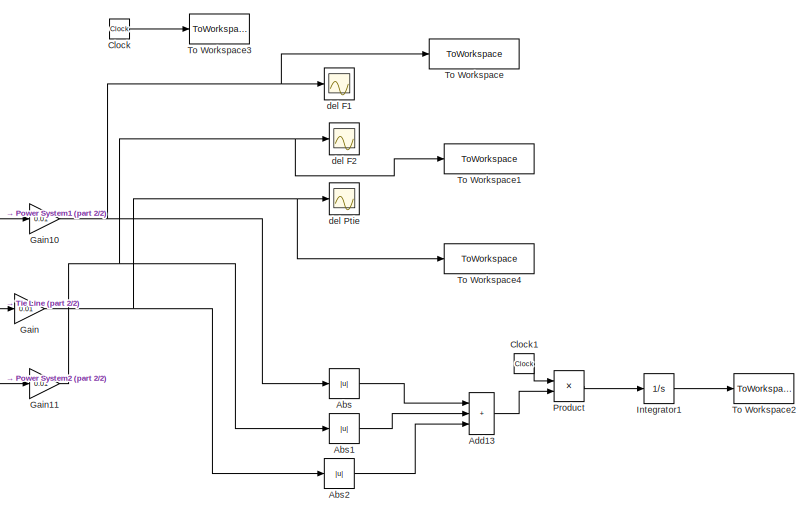
[diagram: root canvas - part 1/2, middle right region]
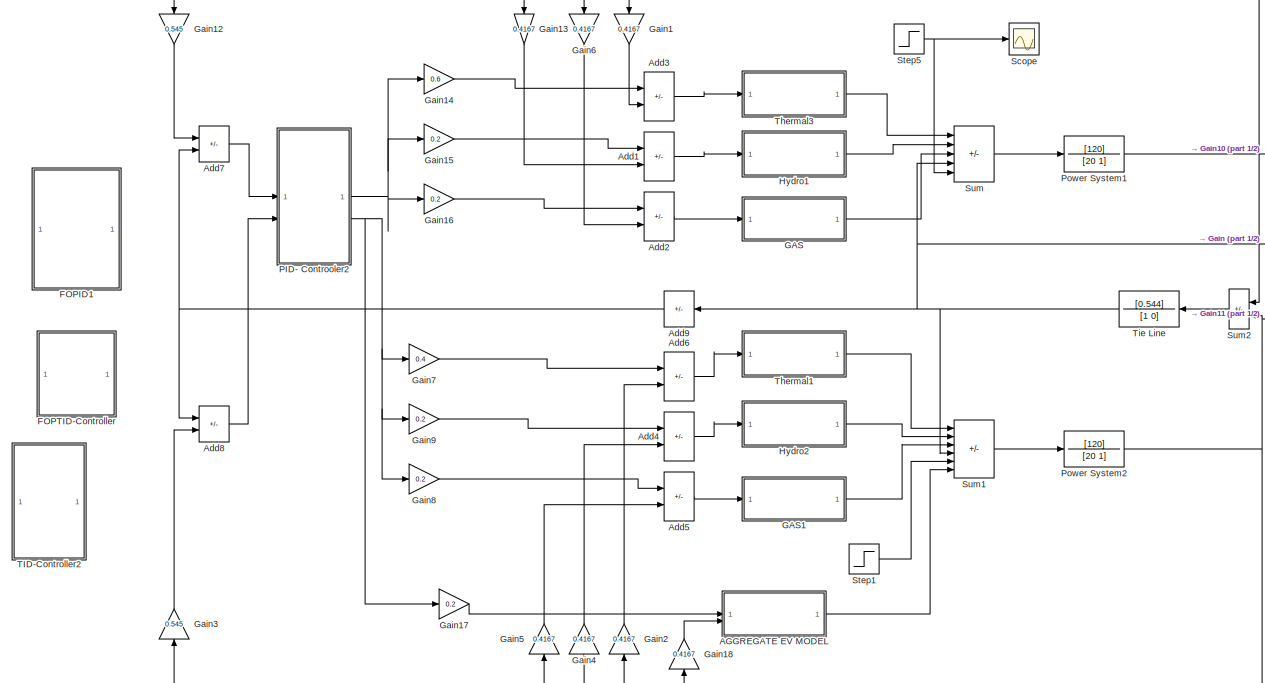
[diagram: root canvas - part 2/2, left side, full height]
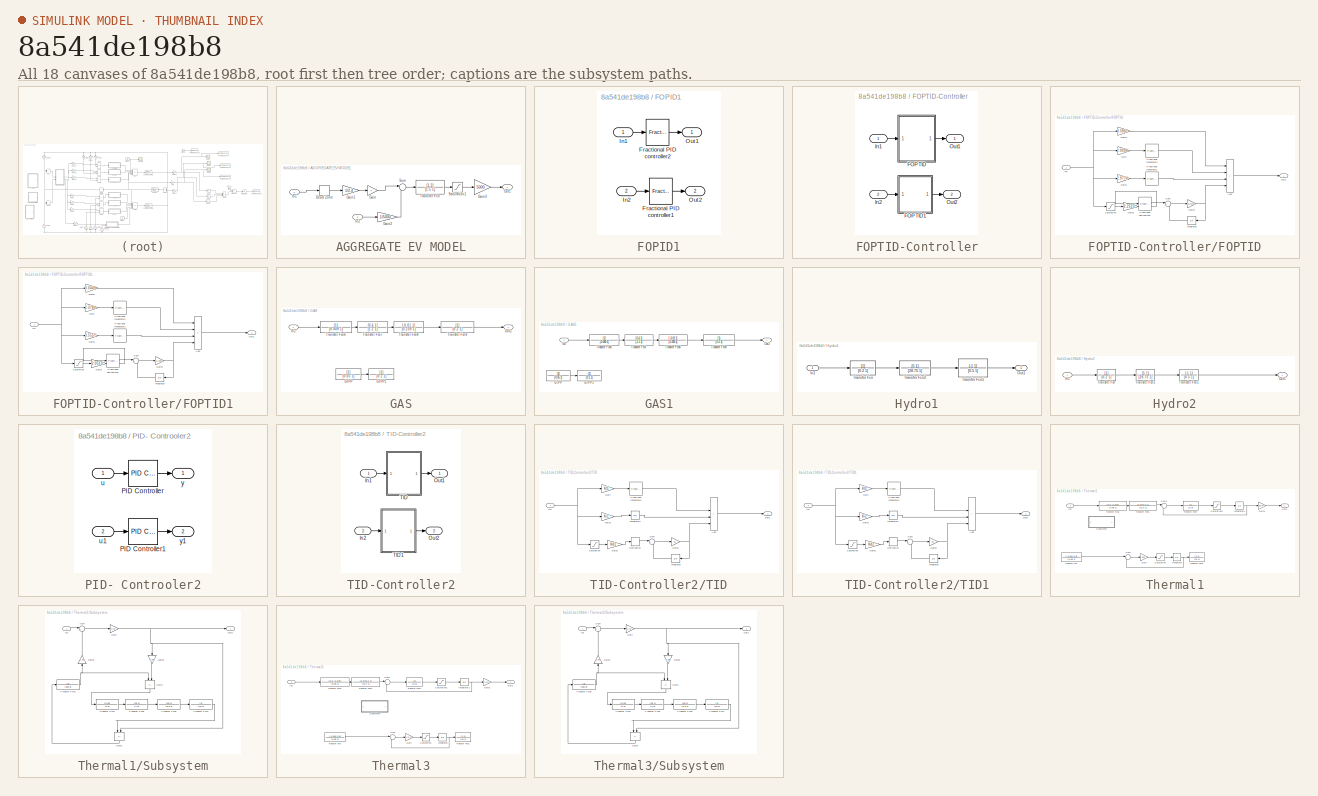
[diagram: thumbnail index - all 18 canvases of the model, root first then tree order]
MODEL slx_8a541de198b8
KIND model
CONFIG AbsTol = auto
CONFIG EnableMultiTasking = off
CONFIG FixedStep = auto
CONFIG MaxStep = auto
CONFIG MinStep = auto
CONFIG RelTol = 1e-3
CONFIG SampleTimeConstraint = Unconstrained
CONFIG SolverName = VariableStepAuto
CONFIG StartTime = 0.0
CONFIG StopTime = 50
BLOCK [SubSystem] AGGREGATE EV MODEL
BLOCK [DeadZone] AGGREGATE EV MODEL/Dead Zone
  LowerValue = -0.01
  UpperValue = 0.01
BLOCK [Gain] AGGREGATE EV MODEL/Gain
BLOCK [Gain] AGGREGATE EV MODEL/Gain1
  Gain = 1/2.4
BLOCK [Gain] AGGREGATE EV MODEL/Gain2
  Gain = 1/5000
BLOCK [Gain] AGGREGATE EV MODEL/Gain3
  Gain = 5000
BLOCK [Inport] AGGREGATE EV MODEL/In1
BLOCK [Inport] AGGREGATE EV MODEL/In2
  Port = 2
BLOCK [Outport] AGGREGATE EV MODEL/Out1
BLOCK [Saturate] AGGREGATE EV MODEL/Saturation1
  LowerLimit = -0.01
  UpperLimit = 0.01
BLOCK [Sum] AGGREGATE EV MODEL/Sum
  Inputs = |-+
BLOCK [TransferFcn] AGGREGATE EV MODEL/Transfer Fcn
  Denominator = [1.5 1]
  Numerator = [1.2]
BLOCK [Abs] Abs
  SaturateOnIntegerOverflow = off
BLOCK [Abs] Abs1
  SaturateOnIntegerOverflow = off
BLOCK [Abs] Abs2
  SaturateOnIntegerOverflow = off
BLOCK [Sum] Add1
  IconShape = rectangular
  Inputs = +-
BLOCK [Sum] Add13
  IconShape = rectangular
  Inputs = +++
BLOCK [Sum] Add2
  IconShape = rectangular
  Inputs = +-
BLOCK [Sum] Add3
  IconShape = rectangular
  Inputs = +-
BLOCK [Sum] Add4
  IconShape = rectangular
  Inputs = +-
BLOCK [Sum] Add5
  IconShape = rectangular
  Inputs = +-
BLOCK [Sum] Add6
  IconShape = rectangular
  Inputs = +-
BLOCK [Sum] Add7
  IconShape = rectangular
  Inputs = --
BLOCK [Sum] Add8
  IconShape = rectangular
  Inputs = +-
BLOCK [Sum] Add9
  IconShape = rectangular
  Inputs = -++
  NameLocation = top
BLOCK [Clock] Clock
BLOCK [Clock] Clock1
BLOCK [SubSystem] FOPID1
  Commented = on
BLOCK [Reference] FOPID1/Fractional PID controller1  REF=fod/Fractional PID  (lib defined in slx_5cb2d42c7bef)
controller
  SourceBlock = fod/Fractional PID\ncontroller
  SourceProductName = FOMCON Toolbox
  SourceType = Fractional PID
BLOCK [Reference] FOPID1/Fractional PID controller2  REF=fod/Fractional PID  (lib defined in slx_5cb2d42c7bef)
controller
  SourceBlock = fod/Fractional PID\ncontroller
  SourceProductName = FOMCON Toolbox
  SourceType = Fractional PID
BLOCK [Inport] FOPID1/In1
BLOCK [Inport] FOPID1/In2
  Port = 2
BLOCK [Outport] FOPID1/Out1
BLOCK [Outport] FOPID1/Out2
  Port = 2
BLOCK [SubSystem] FOPTID-Controller
  Commented = on
BLOCK [SubSystem] FOPTID-Controller/FOPTID
BLOCK [Sum] FOPTID-Controller/FOPTID/Add
  IconShape = rectangular
  Inputs = ++++
BLOCK [Reference] FOPTID-Controller/FOPTID/Fractional derivative2  REF=fod/Fractional  (lib defined in slx_5cb2d42c7bef)
derivative
  SourceBlock = fod/Fractional\nderivative
  SourceProductName = FOMCON Toolbox
  SourceType = Fractional derivative
BLOCK [Reference] FOPTID-Controller/FOPTID/Fractional integrator1  REF=fod/Fractional  (lib defined in slx_5cb2d42c7bef)
integrator
  SourceBlock = fod/Fractional\nintegrator
  SourceProductName = FOMCON Toolbox
  SourceType = Fractional integrator
BLOCK [Reference] FOPTID-Controller/FOPTID/Fractional integrator3  REF=fod/Fractional  (lib defined in slx_5cb2d42c7bef)
integrator
  SourceBlock = fod/Fractional\nintegrator
  SourceProductName = FOMCON Toolbox
  SourceType = Fractional integrator
BLOCK [Gain] FOPTID-Controller/FOPTID/Gain
  Gain = 2.9098
BLOCK [Gain] FOPTID-Controller/FOPTID/Gain1
  Gain = 2.9774
BLOCK [Gain] FOPTID-Controller/FOPTID/Gain2
  Gain = 2.2513
BLOCK [Gain] FOPTID-Controller/FOPTID/Gain3
  Gain = 43.5523
BLOCK [Gain] FOPTID-Controller/FOPTID/Gain4
  Gain = 4.5882
BLOCK [Inport] FOPTID-Controller/FOPTID/In1
BLOCK [Integrator] FOPTID-Controller/FOPTID/Integrator
  NameLocation = top
BLOCK [Outport] FOPTID-Controller/FOPTID/Out1
BLOCK [Saturate] FOPTID-Controller/FOPTID/Saturation
  LowerLimit = -100000
  UpperLimit = 100000
BLOCK [Sum] FOPTID-Controller/FOPTID/Sum
  Inputs = |+-
BLOCK [SubSystem] FOPTID-Controller/FOPTID1
BLOCK [Sum] FOPTID-Controller/FOPTID1/Add
  IconShape = rectangular
  Inputs = ++++
BLOCK [Reference] FOPTID-Controller/FOPTID1/Fractional derivative2  REF=fod/Fractional  (lib defined in slx_5cb2d42c7bef)
derivative
  SourceBlock = fod/Fractional\nderivative
  SourceProductName = FOMCON Toolbox
  SourceType = Fractional derivative
BLOCK [Reference] FOPTID-Controller/FOPTID1/Fractional integrator1  REF=fod/Fractional  (lib defined in slx_5cb2d42c7bef)
integrator
  SourceBlock = fod/Fractional\nintegrator
  SourceProductName = FOMCON Toolbox
  SourceType = Fractional integrator
BLOCK [Reference] FOPTID-Controller/FOPTID1/Fractional integrator3  REF=fod/Fractional  (lib defined in slx_5cb2d42c7bef)
integrator
  SourceBlock = fod/Fractional\nintegrator
  SourceProductName = FOMCON Toolbox
  SourceType = Fractional integrator
BLOCK [Gain] FOPTID-Controller/FOPTID1/Gain
  Gain = 2.3784
BLOCK [Gain] FOPTID-Controller/FOPTID1/Gain1
  Gain = 3.5557
BLOCK [Gain] FOPTID-Controller/FOPTID1/Gain2
  Gain = 2.0515
BLOCK [Gain] FOPTID-Controller/FOPTID1/Gain3
  Gain = 63.2097
BLOCK [Gain] FOPTID-Controller/FOPTID1/Gain4
  Gain = 3.0449
BLOCK [Inport] FOPTID-Controller/FOPTID1/In1
BLOCK [Integrator] FOPTID-Controller/FOPTID1/Integrator
  NameLocation = top
BLOCK [Outport] FOPTID-Controller/FOPTID1/Out1
BLOCK [Saturate] FOPTID-Controller/FOPTID1/Saturation
  LowerLimit = -100000
  UpperLimit = 100000
BLOCK [Sum] FOPTID-Controller/FOPTID1/Sum
  Inputs = |+-
BLOCK [Inport] FOPTID-Controller/In1
BLOCK [Inport] FOPTID-Controller/In2
  Port = 2
BLOCK [Outport] FOPTID-Controller/Out1
BLOCK [Outport] FOPTID-Controller/Out2
  Port = 2
BLOCK [SubSystem] GAS
BLOCK [TransferFcn] GAS/GTPP
  Commented = on
  Denominator = [0.05 1]
BLOCK [TransferFcn] GAS/GTPP1
  Commented = on
  Denominator = [0.1 1]
BLOCK [Inport] GAS/In2
BLOCK [Outport] GAS/Out2
BLOCK [TransferFcn] GAS/Transfer Fcn6
  Denominator = [0.049 1]
BLOCK [TransferFcn] GAS/Transfer Fcn7
  Denominator = [1.1 1]
  Numerator = [0.6 1]
BLOCK [TransferFcn] GAS/Transfer Fcn8
  Denominator = [0.239 1]
  Numerator = [-0.01 1]
BLOCK [TransferFcn] GAS/Transfer Fcn9
  Denominator = [0.2 1]
BLOCK [SubSystem] GAS1
BLOCK [TransferFcn] GAS1/GTPP
  Commented = on
  Denominator = [0.05 1]
BLOCK [TransferFcn] GAS1/GTPP1
  Commented = on
  Denominator = [0.1 1]
BLOCK [Inport] GAS1/In2
BLOCK [Outport] GAS1/Out2
BLOCK [TransferFcn] GAS1/Transfer Fcn6
  Denominator = [0.049 1]
BLOCK [TransferFcn] GAS1/Transfer Fcn7
  Denominator = [1.1 1]
  Numerator = [0.6 1]
BLOCK [TransferFcn] GAS1/Transfer Fcn8
  Denominator = [0.239 1]
  Numerator = [-0.01 1]
BLOCK [TransferFcn] GAS1/Transfer Fcn9
  Denominator = [0.2 1]
BLOCK [Gain] Gain
  Gain = 0.01
BLOCK [Gain] Gain1
  Gain = 0.4167
  NameLocation = left
BLOCK [Gain] Gain10
  Gain = 0.01
BLOCK [Gain] Gain11
  Gain = 0.01
BLOCK [Gain] Gain12
  Gain = 0.545
  NameLocation = left
BLOCK [Gain] Gain13
  Gain = 0.4167
  NameLocation = left
BLOCK [Gain] Gain14
  Gain = 0.6
BLOCK [Gain] Gain15
  Gain = 0.2
BLOCK [Gain] Gain16
  Gain = 0.2
BLOCK [Gain] Gain17
  Gain = 0.2
BLOCK [Gain] Gain18
  Gain = 0.4167
  NameLocation = right
BLOCK [Gain] Gain2
  Gain = 0.4167
  NameLocation = right
BLOCK [Gain] Gain3
  Gain = 0.545
  NameLocation = right
BLOCK [Gain] Gain4
  Gain = 0.4167
  NameLocation = right
BLOCK [Gain] Gain5
  Gain = 0.4167
  NameLocation = right
BLOCK [Gain] Gain6
  Gain = 0.4167
  NameLocation = left
BLOCK [Gain] Gain7
  Gain = 0.4
BLOCK [Gain] Gain8
  Gain = 0.2
BLOCK [Gain] Gain9
  Gain = 0.2
BLOCK [SubSystem] Hydro1
BLOCK [Inport] Hydro1/In1
BLOCK [Outport] Hydro1/Out1
BLOCK [TransferFcn] Hydro1/Transfer Fcn
  Denominator = [0.2 1]
BLOCK [TransferFcn] Hydro1/Transfer Fcn1
  Denominator = [0.5 1]
  Numerator = [-1 1]
BLOCK [TransferFcn] Hydro1/Transfer Fcn2
  Denominator = [28.75 1]
  Numerator = [5 1]
BLOCK [SubSystem] Hydro2
BLOCK [Inport] Hydro2/In1
BLOCK [Outport] Hydro2/Out1
BLOCK [TransferFcn] Hydro2/Transfer Fcn
  Denominator = [0.2 1]
BLOCK [TransferFcn] Hydro2/Transfer Fcn1
  Denominator = [0.5 1]
  Numerator = [-1 1]
BLOCK [TransferFcn] Hydro2/Transfer Fcn2
  Denominator = [28.75 1]
  Numerator = [5 1]
BLOCK [Integrator] Integrator1
BLOCK [SubSystem] PID- Controoler2
BLOCK [Reference] PID- Controoler2/PID Controller  REF=slpidlib/PID Controller
  LibrarySourceBlock = simulink/Continuous/PID Controller
  SourceBlock = slpidlib/PID Controller
  SourceType = PID 1dof
BLOCK [Reference] PID- Controoler2/PID Controller1  REF=slpidlib/PID Controller
  LibrarySourceBlock = simulink/Continuous/PID Controller
  SourceBlock = slpidlib/PID Controller
  SourceType = PID 1dof
BLOCK [Inport] PID- Controoler2/u
BLOCK [Inport] PID- Controoler2/u1
  Port = 2
BLOCK [Outport] PID- Controoler2/y
BLOCK [Outport] PID- Controoler2/y1
  Port = 2
BLOCK [TransferFcn] Power System1
  Denominator = [20 1]
  Numerator = [120]
BLOCK [TransferFcn] Power System2
  Denominator = [20 1]
  Numerator = [120]
BLOCK [Product] Product
BLOCK [Scope] Scope
  Floating = off
  NumInputPorts = 1
  ScopeSpecificationString = Simulink.scopes.TimeScopeBlockCfg('CurrentConfiguration', extmgr.ConfigurationSet(extmgr.Configuration('Core','General UI',true),extmgr.Configuration('Core','Source UI',true),extmgr.Configuration('Sources','WiredSimulink',true,'DataLoggingVariableName','ScopeData1'),extmgr.Configuration('Visuals','Time Domain',true,'SerializedDisplays',{struct('MinYLimReal','0.02','MaxYLimReal','0.04','YLabelReal'...<+1367ch>
BLOCK [Step] Step1
  After = 0.03
  SampleTime = 0
  Time = 0
  ZeroCross = off
BLOCK [Step] Step5
  After = 0.03
  SampleTime = 0
  Time = 0
  ZeroCross = off
BLOCK [Sum] Sum
  IconShape = rectangular
  Inputs = +++--
BLOCK [Sum] Sum1
  IconShape = rectangular
  Inputs = ++++-+
BLOCK [Sum] Sum2
  IconShape = rectangular
  Inputs = +-
  NameLocation = top
BLOCK [SubSystem] TID-Controller2
  Commented = on
BLOCK [Inport] TID-Controller2/In1
BLOCK [Inport] TID-Controller2/In2
  Port = 2
BLOCK [Outport] TID-Controller2/Out1
BLOCK [Outport] TID-Controller2/Out2
  Port = 2
BLOCK [SubSystem] TID-Controller2/TID
BLOCK [Sum] TID-Controller2/TID/Add
  IconShape = rectangular
  Inputs = ++++
BLOCK [Derivative] TID-Controller2/TID/Derivative
BLOCK [Reference] TID-Controller2/TID/Fractional integrator3  REF=fod/Fractional  (lib defined in slx_5cb2d42c7bef)
integrator
  SourceBlock = fod/Fractional\nintegrator
  SourceProductName = FOMCON Toolbox
  SourceType = Fractional integrator
BLOCK [Gain] TID-Controller2/TID/Gain
  Gain = Kt1
BLOCK [Gain] TID-Controller2/TID/Gain1
  Gain = Ki1
BLOCK [Gain] TID-Controller2/TID/Gain2
  Gain = Kd1
BLOCK [Gain] TID-Controller2/TID/Gain3
  Gain = N1
BLOCK [Inport] TID-Controller2/TID/In1
BLOCK [Integrator] TID-Controller2/TID/Integrator
  NameLocation = top
BLOCK [Integrator] TID-Controller2/TID/Integrator1
BLOCK [Outport] TID-Controller2/TID/Out1
BLOCK [Saturate] TID-Controller2/TID/Saturation
  LowerLimit = -100000
  UpperLimit = 100000
BLOCK [Sum] TID-Controller2/TID/Sum
  Inputs = |+-
BLOCK [SubSystem] TID-Controller2/TID1
BLOCK [Sum] TID-Controller2/TID1/Add
  IconShape = rectangular
  Inputs = ++++
BLOCK [Derivative] TID-Controller2/TID1/Derivative
BLOCK [Reference] TID-Controller2/TID1/Fractional integrator3  REF=fod/Fractional  (lib defined in slx_5cb2d42c7bef)
integrator
  SourceBlock = fod/Fractional\nintegrator
  SourceProductName = FOMCON Toolbox
  SourceType = Fractional integrator
BLOCK [Gain] TID-Controller2/TID1/Gain
  Gain = Kt2
BLOCK [Gain] TID-Controller2/TID1/Gain1
  Gain = Ki2
BLOCK [Gain] TID-Controller2/TID1/Gain2
  Gain = Kd2
BLOCK [Gain] TID-Controller2/TID1/Gain3
  Gain = N2
BLOCK [Inport] TID-Controller2/TID1/In1
BLOCK [Integrator] TID-Controller2/TID1/Integrator
  NameLocation = top
BLOCK [Integrator] TID-Controller2/TID1/Integrator1
BLOCK [Outport] TID-Controller2/TID1/Out1
BLOCK [Saturate] TID-Controller2/TID1/Saturation
  LowerLimit = -100000
  UpperLimit = 100000
BLOCK [Sum] TID-Controller2/TID1/Sum
  Inputs = |+-
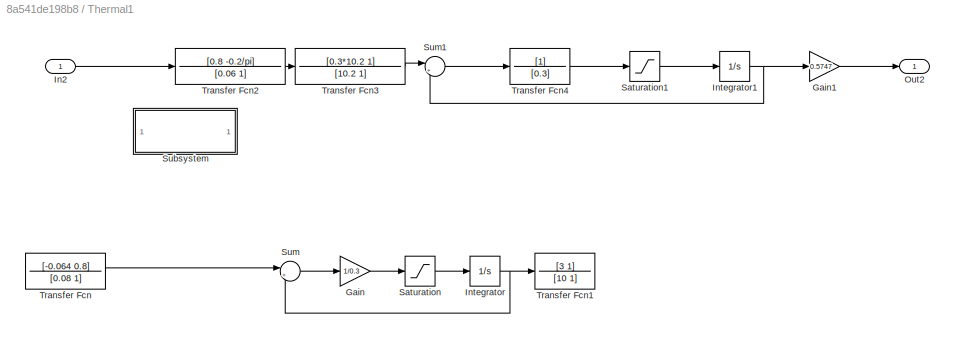
BLOCK [SubSystem] Thermal1
BLOCK [Gain] Thermal1/Gain
  Commented = on
  Gain = 1/0.3
BLOCK [Gain] Thermal1/Gain1
  Gain = 0.5747
BLOCK [Inport] Thermal1/In2
BLOCK [Integrator] Thermal1/Integrator
  Commented = on
BLOCK [Integrator] Thermal1/Integrator1
BLOCK [Outport] Thermal1/Out2
BLOCK [Saturate] Thermal1/Saturation
  Commented = on
  LowerLimit = -0.0005
  UpperLimit = 0.0005
BLOCK [Saturate] Thermal1/Saturation1
  LowerLimit = -0.0017
  UpperLimit = 0.0017
  ZeroCross = off
BLOCK [SubSystem] Thermal1/Subsystem
  Commented = on
BLOCK [Gain] Thermal1/Subsystem/Gain
  Gain = 0.92
BLOCK [Gain] Thermal1/Subsystem/Gain1
  Gain = 0.095
  NameLocation = left
BLOCK [Gain] Thermal1/Subsystem/Gain2
  Gain = 0.85
  NameLocation = right
BLOCK [Inport] Thermal1/Subsystem/In1
BLOCK [Outport] Thermal1/Subsystem/Out1
BLOCK [Sum] Thermal1/Subsystem/Sum
  Inputs = |++
BLOCK [Sum] Thermal1/Subsystem/Sum1
  IconShape = rectangular
  Inputs = -+
  NameLocation = left
BLOCK [Sum] Thermal1/Subsystem/Sum2
  IconShape = rectangular
  Inputs = +-
  NameLocation = left
BLOCK [TransferFcn] Thermal1/Subsystem/Transfer Fcn3
  Denominator = [200 0]
BLOCK [TransferFcn] Thermal1/Subsystem/Transfer Fcn4
  Denominator = [0 1]
  Numerator = [0.03]
BLOCK [TransferFcn] Thermal1/Subsystem/Transfer Fcn5
  Denominator = [1 0]
  Numerator = [26 1]
BLOCK [TransferFcn] Thermal1/Subsystem/Transfer Fcn6
  Denominator = [6.9 1]
  Numerator = [69 1]
BLOCK [TransferFcn] Thermal1/Subsystem/Transfer Fcn7
  Denominator = [10 1]
BLOCK [Sum] Thermal1/Sum
  Commented = on
  Inputs = |+-
BLOCK [Sum] Thermal1/Sum1
  Inputs = |+-
BLOCK [TransferFcn] Thermal1/Transfer Fcn
  Commented = on
  Denominator = [0.08 1]
  Numerator = [-0.064 0.8]
BLOCK [TransferFcn] Thermal1/Transfer Fcn1
  Commented = on
  Denominator = [10 1]
  Numerator = [3 1]
BLOCK [TransferFcn] Thermal1/Transfer Fcn2
  Denominator = [0.06 1]
  Numerator = [0.8 -0.2/pi]
BLOCK [TransferFcn] Thermal1/Transfer Fcn3
  Denominator = [10.2 1]
  Numerator = [0.3*10.2 1]
BLOCK [TransferFcn] Thermal1/Transfer Fcn4
  Denominator = [0.3]
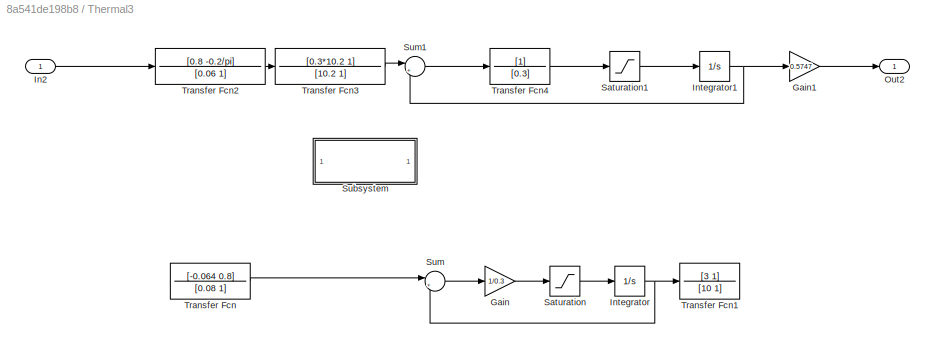
BLOCK [SubSystem] Thermal3
BLOCK [Gain] Thermal3/Gain
  Commented = on
  Gain = 1/0.3
BLOCK [Gain] Thermal3/Gain1
  Gain = 0.5747
BLOCK [Inport] Thermal3/In2
BLOCK [Integrator] Thermal3/Integrator
  Commented = on
BLOCK [Integrator] Thermal3/Integrator1
BLOCK [Outport] Thermal3/Out2
BLOCK [Saturate] Thermal3/Saturation
  Commented = on
  LowerLimit = -0.0005
  UpperLimit = 0.0005
BLOCK [Saturate] Thermal3/Saturation1
  LowerLimit = -0.0017
  UpperLimit = 0.0017
  ZeroCross = off
BLOCK [SubSystem] Thermal3/Subsystem
  Commented = on
BLOCK [Gain] Thermal3/Subsystem/Gain
  Gain = 0.92
BLOCK [Gain] Thermal3/Subsystem/Gain1
  Gain = 0.095
  NameLocation = left
BLOCK [Gain] Thermal3/Subsystem/Gain2
  Gain = 0.85
  NameLocation = right
BLOCK [Inport] Thermal3/Subsystem/In1
BLOCK [Outport] Thermal3/Subsystem/Out1
BLOCK [Sum] Thermal3/Subsystem/Sum
  Inputs = |++
BLOCK [Sum] Thermal3/Subsystem/Sum1
  IconShape = rectangular
  Inputs = -+
  NameLocation = left
BLOCK [Sum] Thermal3/Subsystem/Sum2
  IconShape = rectangular
  Inputs = +-
  NameLocation = left
BLOCK [TransferFcn] Thermal3/Subsystem/Transfer Fcn3
  Denominator = [200 0]
BLOCK [TransferFcn] Thermal3/Subsystem/Transfer Fcn4
  Denominator = [0 1]
  Numerator = [0.03]
BLOCK [TransferFcn] Thermal3/Subsystem/Transfer Fcn5
  Denominator = [1 0]
  Numerator = [26 1]
BLOCK [TransferFcn] Thermal3/Subsystem/Transfer Fcn6
  Denominator = [6.9 1]
  Numerator = [69 1]
BLOCK [TransferFcn] Thermal3/Subsystem/Transfer Fcn7
  Denominator = [10 1]
BLOCK [Sum] Thermal3/Sum
  Commented = on
  Inputs = |+-
BLOCK [Sum] Thermal3/Sum1
  Inputs = |+-
BLOCK [TransferFcn] Thermal3/Transfer Fcn
  Commented = on
  Denominator = [0.08 1]
  Numerator = [-0.064 0.8]
BLOCK [TransferFcn] Thermal3/Transfer Fcn1
  Commented = on
  Denominator = [10 1]
  Numerator = [3 1]
BLOCK [TransferFcn] Thermal3/Transfer Fcn2
  Denominator = [0.06 1]
  Numerator = [0.8 -0.2/pi]
BLOCK [TransferFcn] Thermal3/Transfer Fcn3
  Denominator = [10.2 1]
  Numerator = [0.3*10.2 1]
BLOCK [TransferFcn] Thermal3/Transfer Fcn4
  Denominator = [0.3]
BLOCK [TransferFcn] Tie Line
  Denominator = [1 0]
  NameLocation = top
  Numerator = [0.544]
BLOCK [ToWorkspace] To Workspace
  FixptAsFi = on
  MaxDataPoints = inf
  SampleTime = -1
  SaveFormat = Timeseries
  VariableName = delf1
BLOCK [ToWorkspace] To Workspace1
  FixptAsFi = on
  MaxDataPoints = inf
  SampleTime = -1
  SaveFormat = Timeseries
  VariableName = delf2
BLOCK [ToWorkspace] To Workspace2
  MaxDataPoints = 1
  SampleTime = -1
  VariableName = e
BLOCK [ToWorkspace] To Workspace3
  MaxDataPoints = inf
  SampleTime = -1
  VariableName = time
BLOCK [ToWorkspace] To Workspace4
  FixptAsFi = on
  MaxDataPoints = inf
  SampleTime = -1
  SaveFormat = Timeseries
  VariableName = ptie
BLOCK [Scope] del F1
  Floating = off
  NumInputPorts = 1
  ScopeSpecificationString = Simulink.scopes.TimeScopeBlockCfg('CurrentConfiguration', extmgr.ConfigurationSet(extmgr.Configuration('Core','General UI',true),extmgr.Configuration('Core','Source UI',true),extmgr.Configuration('Sources','WiredSimulink',true,'DataLoggingVariableName','ScopeData2'),extmgr.Configuration('Visuals','Time Domain',true,'SerializedDisplays',{struct('MinYLimReal','-1222503147766382.5','MaxYLimReal','855...<+1490ch>
BLOCK [Scope] del F2
  Floating = off
  NumInputPorts = 1
  ScopeSpecificationString = Simulink.scopes.TimeScopeBlockCfg('CurrentConfiguration', extmgr.ConfigurationSet(extmgr.Configuration('Core','General UI',true),extmgr.Configuration('Core','Source UI',true),extmgr.Configuration('Sources','WiredSimulink',true,'DataLoggingVariableName','ScopeData3'),extmgr.Configuration('Visuals','Time Domain',true,'SerializedDisplays',{struct('MinYLimReal','-140538359763540.125','MaxYLimReal','20...<+1500ch>
BLOCK [Scope] del Ptie
  Floating = off
  NumInputPorts = 1
  ScopeSpecificationString = Simulink.scopes.TimeScopeBlockCfg('CurrentConfiguration', extmgr.ConfigurationSet(extmgr.Configuration('Core','General UI',true),extmgr.Configuration('Core','Source UI',true),extmgr.Configuration('Sources','WiredSimulink',true),extmgr.Configuration('Visuals','Time Domain',true,'SerializedDisplays',{struct('MinYLimReal','-184059508654170.00000','MaxYLimReal','129764517136999.76562','YLabelReal','',...<+1463ch>
LINE AGGREGATE EV MODEL/Dead Zone:1 -> AGGREGATE EV MODEL/Gain1:1
LINE AGGREGATE EV MODEL/Gain1:1 -> AGGREGATE EV MODEL/Gain:1
LINE AGGREGATE EV MODEL/Gain2:1 -> AGGREGATE EV MODEL/Sum:2
LINE AGGREGATE EV MODEL/Gain3:1 -> AGGREGATE EV MODEL/Out1:1
LINE AGGREGATE EV MODEL/Gain:1 -> AGGREGATE EV MODEL/Sum:1
LINE AGGREGATE EV MODEL/In1:1 -> AGGREGATE EV MODEL/Dead Zone:1
LINE AGGREGATE EV MODEL/In2:1 -> AGGREGATE EV MODEL/Gain2:1
LINE AGGREGATE EV MODEL/Saturation1:1 -> AGGREGATE EV MODEL/Gain3:1
LINE AGGREGATE EV MODEL/Sum:1 -> AGGREGATE EV MODEL/Transfer Fcn:1
LINE AGGREGATE EV MODEL/Transfer Fcn:1 -> AGGREGATE EV MODEL/Saturation1:1
LINE AGGREGATE EV MODEL:1 -> Sum1:6
LINE Abs1:1 -> Add13:2
LINE Abs2:1 -> Add13:3
LINE Abs:1 -> Add13:1
LINE Add13:1 -> Product:2
LINE Add1:1 -> Hydro1:1
LINE Add2:1 -> GAS:1
LINE Add3:1 -> Thermal3:1
LINE Add4:1 -> Hydro2:1
LINE Add5:1 -> GAS1:1
LINE Add6:1 -> Thermal1:1
LINE Add7:1 -> PID- Controoler2:1
LINE Add8:1 -> PID- Controoler2:2
NET Add9:1 -> Add7:2, Add8:1
LINE Clock1:1 -> Product:1
LINE Clock:1 -> To Workspace3:1
LINE FOPID1/Fractional PID controller1:1 -> FOPID1/Out2:1
LINE FOPID1/Fractional PID controller2:1 -> FOPID1/Out1:1
LINE FOPID1/In1:1 -> FOPID1/Fractional PID controller2:1
LINE FOPID1/In2:1 -> FOPID1/Fractional PID controller1:1
LINE FOPTID-Controller/FOPTID/Add:1 -> FOPTID-Controller/FOPTID/Out1:1
LINE FOPTID-Controller/FOPTID/Fractional derivative2:1 -> FOPTID-Controller/FOPTID/Sum:1
LINE FOPTID-Controller/FOPTID/Fractional integrator1:1 -> FOPTID-Controller/FOPTID/Add:3
LINE FOPTID-Controller/FOPTID/Fractional integrator3:1 -> FOPTID-Controller/FOPTID/Add:2
LINE FOPTID-Controller/FOPTID/Gain1:1 -> FOPTID-Controller/FOPTID/Fractional integrator1:1
LINE FOPTID-Controller/FOPTID/Gain2:1 -> FOPTID-Controller/FOPTID/Fractional derivative2:1
NET FOPTID-Controller/FOPTID/Gain3:1 -> FOPTID-Controller/FOPTID/Add:4, FOPTID-Controller/FOPTID/Integrator:1
LINE FOPTID-Controller/FOPTID/Gain4:1 -> FOPTID-Controller/FOPTID/Add:1
LINE FOPTID-Controller/FOPTID/Gain:1 -> FOPTID-Controller/FOPTID/Fractional integrator3:1
NET FOPTID-Controller/FOPTID/In1:1 -> FOPTID-Controller/FOPTID/Gain1:1, FOPTID-Controller/FOPTID/Gain4:1, FOPTID-Controller/FOPTID/Gain:1, FOPTID-Controller/FOPTID/Saturation:1
LINE FOPTID-Controller/FOPTID/Integrator:1 -> FOPTID-Controller/FOPTID/Sum:2
LINE FOPTID-Controller/FOPTID/Saturation:1 -> FOPTID-Controller/FOPTID/Gain2:1
LINE FOPTID-Controller/FOPTID/Sum:1 -> FOPTID-Controller/FOPTID/Gain3:1
LINE FOPTID-Controller/FOPTID1/Add:1 -> FOPTID-Controller/FOPTID1/Out1:1
LINE FOPTID-Controller/FOPTID1/Fractional derivative2:1 -> FOPTID-Controller/FOPTID1/Sum:1
LINE FOPTID-Controller/FOPTID1/Fractional integrator1:1 -> FOPTID-Controller/FOPTID1/Add:3
LINE FOPTID-Controller/FOPTID1/Fractional integrator3:1 -> FOPTID-Controller/FOPTID1/Add:2
LINE FOPTID-Controller/FOPTID1/Gain1:1 -> FOPTID-Controller/FOPTID1/Fractional integrator1:1
LINE FOPTID-Controller/FOPTID1/Gain2:1 -> FOPTID-Controller/FOPTID1/Fractional derivative2:1
NET FOPTID-Controller/FOPTID1/Gain3:1 -> FOPTID-Controller/FOPTID1/Add:4, FOPTID-Controller/FOPTID1/Integrator:1
LINE FOPTID-Controller/FOPTID1/Gain4:1 -> FOPTID-Controller/FOPTID1/Add:1
LINE FOPTID-Controller/FOPTID1/Gain:1 -> FOPTID-Controller/FOPTID1/Fractional integrator3:1
NET FOPTID-Controller/FOPTID1/In1:1 -> FOPTID-Controller/FOPTID1/Gain1:1, FOPTID-Controller/FOPTID1/Gain4:1, FOPTID-Controller/FOPTID1/Gain:1, FOPTID-Controller/FOPTID1/Saturation:1
LINE FOPTID-Controller/FOPTID1/Integrator:1 -> FOPTID-Controller/FOPTID1/Sum:2
LINE FOPTID-Controller/FOPTID1/Saturation:1 -> FOPTID-Controller/FOPTID1/Gain2:1
LINE FOPTID-Controller/FOPTID1/Sum:1 -> FOPTID-Controller/FOPTID1/Gain3:1
LINE FOPTID-Controller/FOPTID1:1 -> FOPTID-Controller/Out2:1
LINE FOPTID-Controller/FOPTID:1 -> FOPTID-Controller/Out1:1
LINE FOPTID-Controller/In1:1 -> FOPTID-Controller/FOPTID:1
LINE FOPTID-Controller/In2:1 -> FOPTID-Controller/FOPTID1:1
LINE GAS/GTPP:1 -> GAS/GTPP1:1
LINE GAS/In2:1 -> GAS/Transfer Fcn6:1
LINE GAS/Transfer Fcn6:1 -> GAS/Transfer Fcn7:1
LINE GAS/Transfer Fcn7:1 -> GAS/Transfer Fcn8:1
LINE GAS/Transfer Fcn8:1 -> GAS/Transfer Fcn9:1
LINE GAS/Transfer Fcn9:1 -> GAS/Out2:1
LINE GAS1/GTPP:1 -> GAS1/GTPP1:1
LINE GAS1/In2:1 -> GAS1/Transfer Fcn6:1
LINE GAS1/Transfer Fcn6:1 -> GAS1/Transfer Fcn7:1
LINE GAS1/Transfer Fcn7:1 -> GAS1/Transfer Fcn8:1
LINE GAS1/Transfer Fcn8:1 -> GAS1/Transfer Fcn9:1
LINE GAS1/Transfer Fcn9:1 -> GAS1/Out2:1
LINE GAS1:1 -> Sum1:3
LINE GAS:1 -> Sum:3
NET Gain10:1 -> Abs:1, To Workspace:1, del F1:1
NET Gain11:1 -> Abs1:1, To Workspace1:1, del F2:1
LINE Gain12:1 -> Add7:1
LINE Gain13:1 -> Add1:2
LINE Gain14:1 -> Add3:1
LINE Gain15:1 -> Add1:1
LINE Gain16:1 -> Add2:1
LINE Gain17:1 -> AGGREGATE EV MODEL:1
LINE Gain18:1 -> AGGREGATE EV MODEL:2
LINE Gain1:1 -> Add3:2
LINE Gain2:1 -> Add6:2
LINE Gain3:1 -> Add8:2
LINE Gain4:1 -> Add4:2
LINE Gain5:1 -> Add5:2
LINE Gain6:1 -> Add2:2
LINE Gain7:1 -> Add6:1
LINE Gain8:1 -> Add5:1
LINE Gain9:1 -> Add4:1
NET Gain:1 -> Abs2:1, To Workspace4:1, del Ptie:1
LINE Hydro1/In1:1 -> Hydro1/Transfer Fcn:1
LINE Hydro1/Transfer Fcn1:1 -> Hydro1/Out1:1
LINE Hydro1/Transfer Fcn2:1 -> Hydro1/Transfer Fcn1:1
LINE Hydro1/Transfer Fcn:1 -> Hydro1/Transfer Fcn2:1
LINE Hydro1:1 -> Sum:2
LINE Hydro2/In1:1 -> Hydro2/Transfer Fcn:1
LINE Hydro2/Transfer Fcn1:1 -> Hydro2/Out1:1
LINE Hydro2/Transfer Fcn2:1 -> Hydro2/Transfer Fcn1:1
LINE Hydro2/Transfer Fcn:1 -> Hydro2/Transfer Fcn2:1
LINE Hydro2:1 -> Sum1:2
LINE Integrator1:1 -> To Workspace2:1
LINE PID- Controoler2/PID Controller1:1 -> PID- Controoler2/y1:1
LINE PID- Controoler2/PID Controller:1 -> PID- Controoler2/y:1
LINE PID- Controoler2/u1:1 -> PID- Controoler2/PID Controller1:1
LINE PID- Controoler2/u:1 -> PID- Controoler2/PID Controller:1
NET PID- Controoler2:1 -> Gain14:1, Gain15:1, Gain16:1
NET PID- Controoler2:2 -> Gain17:1, Gain7:1, Gain8:1, Gain9:1
NET Power System1:1 -> Gain10:1, Gain12:1, Gain13:1, Gain1:1, Gain6:1, Sum2:1
NET Power System2:1 -> Gain11:1, Gain18:1, Gain2:1, Gain3:1, Gain4:1, Gain5:1, Sum2:2
LINE Product:1 -> Integrator1:1
LINE Step1:1 -> Sum1:5
NET Step5:1 -> Scope:1, Sum:5
LINE Sum1:1 -> Power System2:1
LINE Sum2:1 -> Tie Line:1
LINE Sum:1 -> Power System1:1
LINE TID-Controller2/In1:1 -> TID-Controller2/TID:1
LINE TID-Controller2/In2:1 -> TID-Controller2/TID1:1
LINE TID-Controller2/TID/Add:1 -> TID-Controller2/TID/Out1:1
LINE TID-Controller2/TID/Derivative:1 -> TID-Controller2/TID/Sum:1
LINE TID-Controller2/TID/Fractional integrator3:1 -> TID-Controller2/TID/Add:2
LINE TID-Controller2/TID/Gain1:1 -> TID-Controller2/TID/Integrator1:1
LINE TID-Controller2/TID/Gain2:1 -> TID-Controller2/TID/Derivative:1
NET TID-Controller2/TID/Gain3:1 -> TID-Controller2/TID/Add:4, TID-Controller2/TID/Integrator:1
LINE TID-Controller2/TID/Gain:1 -> TID-Controller2/TID/Fractional integrator3:1
NET TID-Controller2/TID/In1:1 -> TID-Controller2/TID/Gain1:1, TID-Controller2/TID/Gain:1, TID-Controller2/TID/Saturation:1
LINE TID-Controller2/TID/Integrator1:1 -> TID-Controller2/TID/Add:3
LINE TID-Controller2/TID/Integrator:1 -> TID-Controller2/TID/Sum:2
LINE TID-Controller2/TID/Saturation:1 -> TID-Controller2/TID/Gain2:1
LINE TID-Controller2/TID/Sum:1 -> TID-Controller2/TID/Gain3:1
LINE TID-Controller2/TID1/Add:1 -> TID-Controller2/TID1/Out1:1
LINE TID-Controller2/TID1/Derivative:1 -> TID-Controller2/TID1/Sum:1
LINE TID-Controller2/TID1/Fractional integrator3:1 -> TID-Controller2/TID1/Add:2
LINE TID-Controller2/TID1/Gain1:1 -> TID-Controller2/TID1/Integrator1:1
LINE TID-Controller2/TID1/Gain2:1 -> TID-Controller2/TID1/Derivative:1
NET TID-Controller2/TID1/Gain3:1 -> TID-Controller2/TID1/Add:4, TID-Controller2/TID1/Integrator:1
LINE TID-Controller2/TID1/Gain:1 -> TID-Controller2/TID1/Fractional integrator3:1
NET TID-Controller2/TID1/In1:1 -> TID-Controller2/TID1/Gain1:1, TID-Controller2/TID1/Gain:1, TID-Controller2/TID1/Saturation:1
LINE TID-Controller2/TID1/Integrator1:1 -> TID-Controller2/TID1/Add:3
LINE TID-Controller2/TID1/Integrator:1 -> TID-Controller2/TID1/Sum:2
LINE TID-Controller2/TID1/Saturation:1 -> TID-Controller2/TID1/Gain2:1
LINE TID-Controller2/TID1/Sum:1 -> TID-Controller2/TID1/Gain3:1
LINE TID-Controller2/TID1:1 -> TID-Controller2/Out2:1
LINE TID-Controller2/TID:1 -> TID-Controller2/Out1:1
LINE Thermal1/Gain1:1 -> Thermal1/Out2:1
LINE Thermal1/Gain:1 -> Thermal1/Saturation:1
LINE Thermal1/In2:1 -> Thermal1/Transfer Fcn2:1
NET Thermal1/Integrator1:1 -> Thermal1/Gain1:1, Thermal1/Sum1:2
NET Thermal1/Integrator:1 -> Thermal1/Sum:2, Thermal1/Transfer Fcn1:1
LINE Thermal1/Saturation1:1 -> Thermal1/Integrator1:1
LINE Thermal1/Saturation:1 -> Thermal1/Integrator:1
LINE Thermal1/Subsystem/Gain1:1 -> Thermal1/Subsystem/Sum1:2
LINE Thermal1/Subsystem/Gain2:1 -> Thermal1/Subsystem/Sum:2
NET Thermal1/Subsystem/Gain:1 -> Thermal1/Subsystem/Gain1:1, Thermal1/Subsystem/Out1:1, Thermal1/Subsystem/Sum2:2
LINE Thermal1/Subsystem/In1:1 -> Thermal1/Subsystem/Sum:1
LINE Thermal1/Subsystem/Sum1:1 -> Thermal1/Subsystem/Transfer Fcn4:1
LINE Thermal1/Subsystem/Sum2:1 -> Thermal1/Subsystem/Transfer Fcn3:1
LINE Thermal1/Subsystem/Sum:1 -> Thermal1/Subsystem/Gain:1
NET Thermal1/Subsystem/Transfer Fcn3:1 -> Thermal1/Subsystem/Gain2:1, Thermal1/Subsystem/Sum1:1
LINE Thermal1/Subsystem/Transfer Fcn4:1 -> Thermal1/Subsystem/Transfer Fcn5:1
LINE Thermal1/Subsystem/Transfer Fcn5:1 -> Thermal1/Subsystem/Transfer Fcn6:1
LINE Thermal1/Subsystem/Transfer Fcn6:1 -> Thermal1/Subsystem/Transfer Fcn7:1
LINE Thermal1/Subsystem/Transfer Fcn7:1 -> Thermal1/Subsystem/Sum2:1
LINE Thermal1/Sum1:1 -> Thermal1/Transfer Fcn4:1
LINE Thermal1/Sum:1 -> Thermal1/Gain:1
LINE Thermal1/Transfer Fcn2:1 -> Thermal1/Transfer Fcn3:1
LINE Thermal1/Transfer Fcn3:1 -> Thermal1/Sum1:1
LINE Thermal1/Transfer Fcn4:1 -> Thermal1/Saturation1:1
LINE Thermal1/Transfer Fcn:1 -> Thermal1/Sum:1
LINE Thermal1:1 -> Sum1:1
LINE Thermal3/Gain1:1 -> Thermal3/Out2:1
LINE Thermal3/Gain:1 -> Thermal3/Saturation:1
LINE Thermal3/In2:1 -> Thermal3/Transfer Fcn2:1
NET Thermal3/Integrator1:1 -> Thermal3/Gain1:1, Thermal3/Sum1:2
NET Thermal3/Integrator:1 -> Thermal3/Sum:2, Thermal3/Transfer Fcn1:1
LINE Thermal3/Saturation1:1 -> Thermal3/Integrator1:1
LINE Thermal3/Saturation:1 -> Thermal3/Integrator:1
LINE Thermal3/Subsystem/Gain1:1 -> Thermal3/Subsystem/Sum1:2
LINE Thermal3/Subsystem/Gain2:1 -> Thermal3/Subsystem/Sum:2
NET Thermal3/Subsystem/Gain:1 -> Thermal3/Subsystem/Gain1:1, Thermal3/Subsystem/Out1:1, Thermal3/Subsystem/Sum2:2
LINE Thermal3/Subsystem/In1:1 -> Thermal3/Subsystem/Sum:1
LINE Thermal3/Subsystem/Sum1:1 -> Thermal3/Subsystem/Transfer Fcn4:1
LINE Thermal3/Subsystem/Sum2:1 -> Thermal3/Subsystem/Transfer Fcn3:1
LINE Thermal3/Subsystem/Sum:1 -> Thermal3/Subsystem/Gain:1
NET Thermal3/Subsystem/Transfer Fcn3:1 -> Thermal3/Subsystem/Gain2:1, Thermal3/Subsystem/Sum1:1
LINE Thermal3/Subsystem/Transfer Fcn4:1 -> Thermal3/Subsystem/Transfer Fcn5:1
LINE Thermal3/Subsystem/Transfer Fcn5:1 -> Thermal3/Subsystem/Transfer Fcn6:1
LINE Thermal3/Subsystem/Transfer Fcn6:1 -> Thermal3/Subsystem/Transfer Fcn7:1
LINE Thermal3/Subsystem/Transfer Fcn7:1 -> Thermal3/Subsystem/Sum2:1
LINE Thermal3/Sum1:1 -> Thermal3/Transfer Fcn4:1
LINE Thermal3/Sum:1 -> Thermal3/Gain:1
LINE Thermal3/Transfer Fcn2:1 -> Thermal3/Transfer Fcn3:1
LINE Thermal3/Transfer Fcn3:1 -> Thermal3/Sum1:1
LINE Thermal3/Transfer Fcn4:1 -> Thermal3/Saturation1:1
LINE Thermal3/Transfer Fcn:1 -> Thermal3/Sum:1
LINE Thermal3:1 -> Sum:1
NET Tie Line:1 -> Add9:2, Gain:1, Sum1:4, Sum:4
note: NET lines group one-source signal fan-out (src -> all destinations, sorted); 1:1 wires keep LINE
